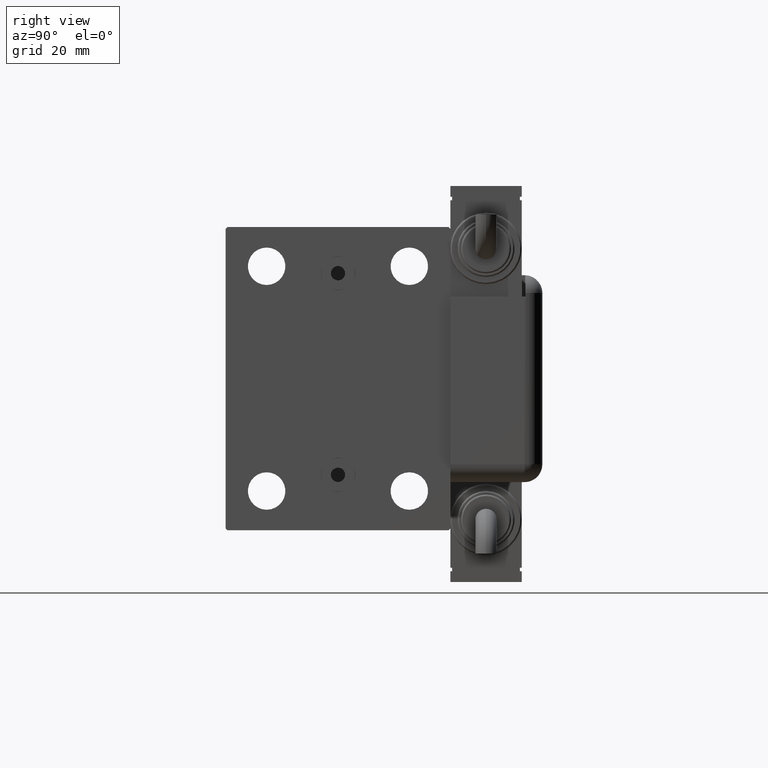
[diagram: clean part render]
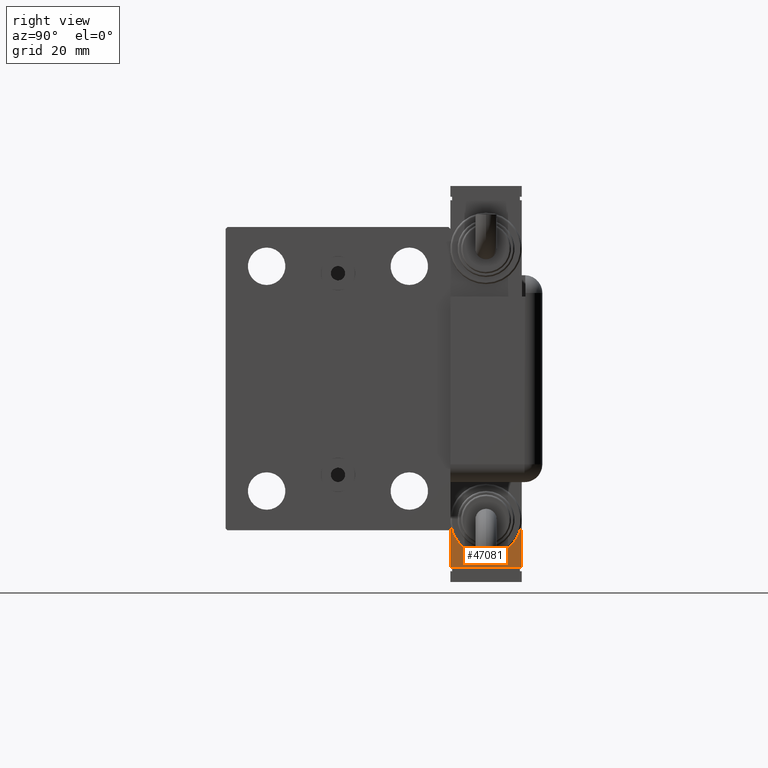
[diagram: same view with one face highlighted and labeled with its STEP entity id]
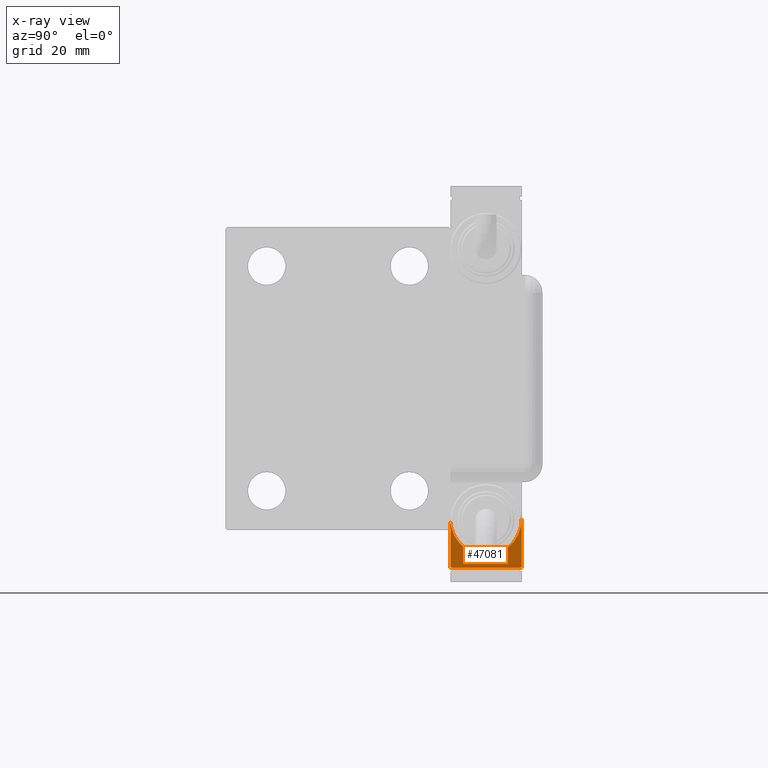
[diagram: x-ray of the same camera — body ghosted, the highlighted face saturated]
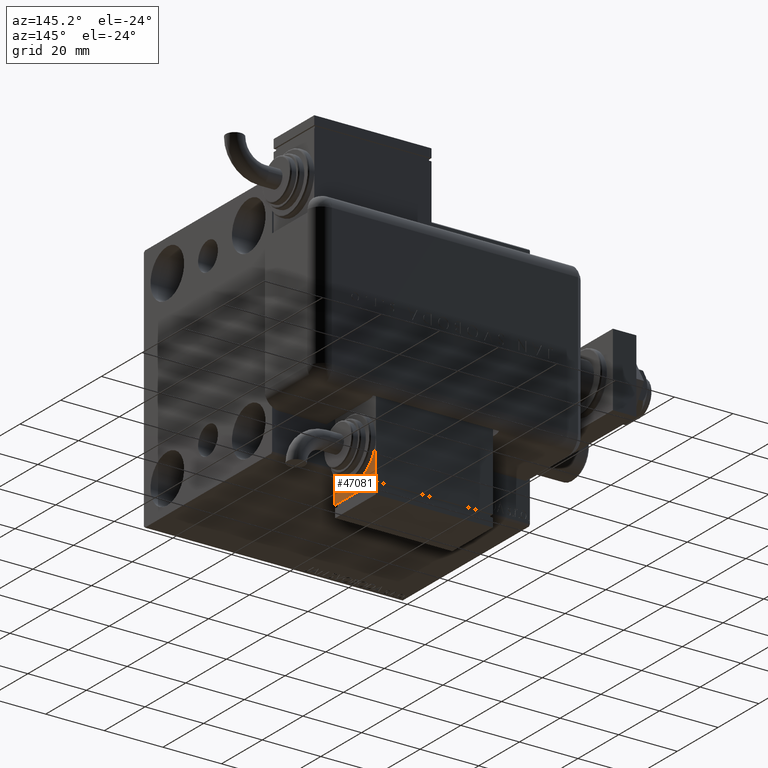
[diagram: same view with one face highlighted and labeled with its STEP entity id]
A machine part, right view. The second image highlights one B-rep face of the part: STEP entity #47081.
The next image is the same camera in x-ray: the body ghosted, the highlighted face saturated — about 0% of this face is hidden behind the body in this view.
A second angle (auxiliary view) of the same face is appended — the face is thin or edge-on in the first view.
In plain terms, the highlighted planar face has unit normal (-1, -0, 0).
Its self-contained STEP definition (entity closure, byte-faithful):
#2624 = DIRECTION ( 'NONE',  ( 0.000000000000000000, -1.000000000000000000, 0.000000000000000000 ) ) ;
#6397 = VECTOR ( 'NONE', #45101, 1000.000000000000000 ) ;
#7239 = LINE ( 'NONE', #31438, #6397 ) ;
#7871 = AXIS2_PLACEMENT_3D ( 'NONE', #26251, #57833, #2624 ) ;
#8517 = ORIENTED_EDGE ( 'NONE', *, *, #30862, .T. ) ;
#9726 = CARTESIAN_POINT ( 'NONE',  ( -19.99999999999994316, -13.49999999999996092, 10.00000000000000000 ) ) ;
#10537 = VERTEX_POINT ( 'NONE', #57841 ) ;
#11854 = VERTEX_POINT ( 'NONE', #28293 ) ;
#13538 = CARTESIAN_POINT ( 'NONE',  ( -19.99999999999994316, -13.49999999999996092, -10.00000000000000000 ) ) ;
#14434 = EDGE_LOOP ( 'NONE', ( #51251, #8517, #47295, #21930, #51612 ) ) ;
#15125 = AXIS2_PLACEMENT_3D ( 'NONE', #26726, #21608, #58615 ) ;
#16363 = CARTESIAN_POINT ( 'NONE',  ( -19.99999999999994316, -13.49999999999996092, 10.00000000000000000 ) ) ;
#17096 = CARTESIAN_POINT ( 'NONE',  ( -19.99999999999993960, 2.569960705150834076E-15, 10.00000000000000000 ) ) ;
#20339 = VERTEX_POINT ( 'NONE', #39838 ) ;
#21608 = DIRECTION ( 'NONE',  ( -1.000000000000000000, 1.284980352575421081E-16, 0.000000000000000000 ) ) ;
#21930 = ORIENTED_EDGE ( 'NONE', *, *, #50554, .F. ) ;
#22390 = CIRCLE ( 'NONE', #7871, 10.00000000000000000 ) ;
#22400 = EDGE_CURVE ( 'NONE', #20339, #38955, #22390, .T. ) ;
#23504 = VECTOR ( 'NONE', #28215, 1000.000000000000000 ) ;
#24855 = PLANE ( 'NONE',  #35173 ) ;
#26251 = CARTESIAN_POINT ( 'NONE',  ( -19.99999999999993960, 2.569960705150834076E-15, 0.000000000000000000 ) ) ;
#26726 = CARTESIAN_POINT ( 'NONE',  ( -19.99999999999993960, 2.569960705150834076E-15, 0.000000000000000000 ) ) ;
#27471 = DIRECTION ( 'NONE',  ( -1.284980352575421081E-16, -1.000000000000000000, -0.000000000000000000 ) ) ;
#28215 = DIRECTION ( 'NONE',  ( -1.284980352575421081E-16, -1.000000000000000000, -0.000000000000000000 ) ) ;
#28293 = CARTESIAN_POINT ( 'NONE',  ( -19.99999999999993960, 2.569960705150834076E-15, -9.999999999999996447 ) ) ;
#29702 = DIRECTION ( 'NONE',  ( 1.284980352575421081E-16, 1.000000000000000000, 0.000000000000000000 ) ) ;
#30003 = DIRECTION ( 'NONE',  ( 1.000000000000000000, -1.284980352575421081E-16, 0.000000000000000000 ) ) ;
#30862 = EDGE_CURVE ( 'NONE', #11854, #57216, #59949, .T. ) ;
#31438 = CARTESIAN_POINT ( 'NONE',  ( -19.99999999999994316, -13.49999999999996092, 10.00000000000000000 ) ) ;
#35173 = AXIS2_PLACEMENT_3D ( 'NONE', #16363, #30003, #29702 ) ;
#38955 = VERTEX_POINT ( 'NONE', #17096 ) ;
#39838 = CARTESIAN_POINT ( 'NONE',  ( -19.99999999999993960, -9.999999999999998224, 1.224646799147353256E-15 ) ) ;
#43349 = FACE_OUTER_BOUND ( 'NONE', #14434, .T. ) ;
#43426 = CARTESIAN_POINT ( 'NONE',  ( -19.99999999999994316, -13.49999999999996092, -10.00000000000000000 ) ) ;
#45101 = DIRECTION ( 'NONE',  ( -0.000000000000000000, -0.000000000000000000, -1.000000000000000000 ) ) ;
#47081 = ADVANCED_FACE ( 'NONE', ( #43349 ), #24855, .F. ) ;
#47295 = ORIENTED_EDGE ( 'NONE', *, *, #59068, .F. ) ;
#47753 = VECTOR ( 'NONE', #27471, 1000.000000000000000 ) ;
#50554 = EDGE_CURVE ( 'NONE', #38955, #10537, #59791, .T. ) ;
#51251 = ORIENTED_EDGE ( 'NONE', *, *, #58487, .F. ) ;
#51612 = ORIENTED_EDGE ( 'NONE', *, *, #22400, .F. ) ;
#54823 = CIRCLE ( 'NONE', #15125, 10.00000000000000000 ) ;
#57216 = VERTEX_POINT ( 'NONE', #43426 ) ;
#57833 = DIRECTION ( 'NONE',  ( -1.000000000000000000, 1.284980352575421081E-16, 0.000000000000000000 ) ) ;
#57841 = CARTESIAN_POINT ( 'NONE',  ( -19.99999999999994316, -13.49999999999996092, 10.00000000000000000 ) ) ;
#58487 = EDGE_CURVE ( 'NONE', #11854, #20339, #54823, .T. ) ;
#58615 = DIRECTION ( 'NONE',  ( 0.000000000000000000, -1.000000000000000000, 0.000000000000000000 ) ) ;
#59068 = EDGE_CURVE ( 'NONE', #10537, #57216, #7239, .T. ) ;
#59791 = LINE ( 'NONE', #9726, #23504 ) ;
#59949 = LINE ( 'NONE', #13538, #47753 ) ;